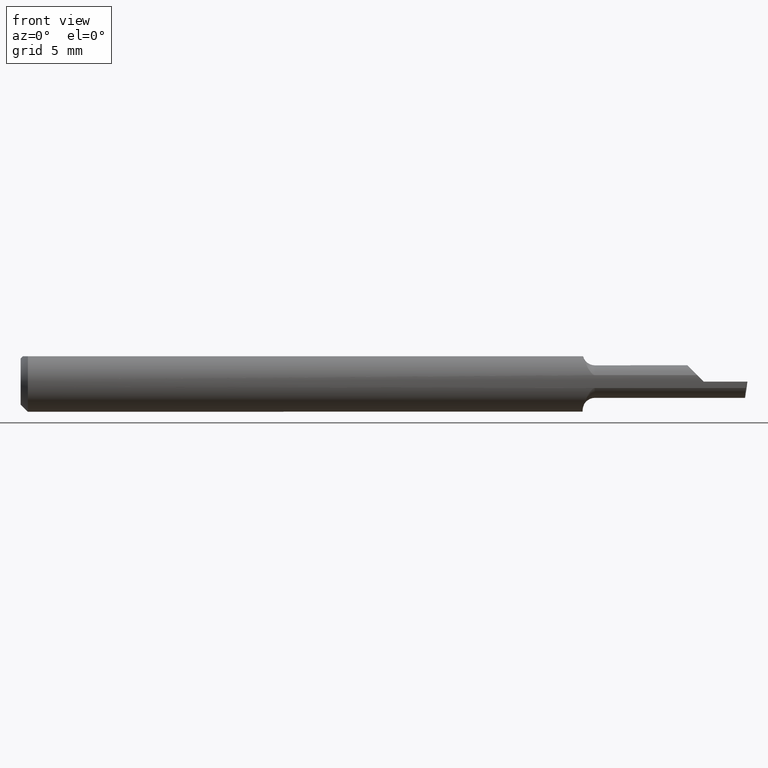
[diagram: clean part render]
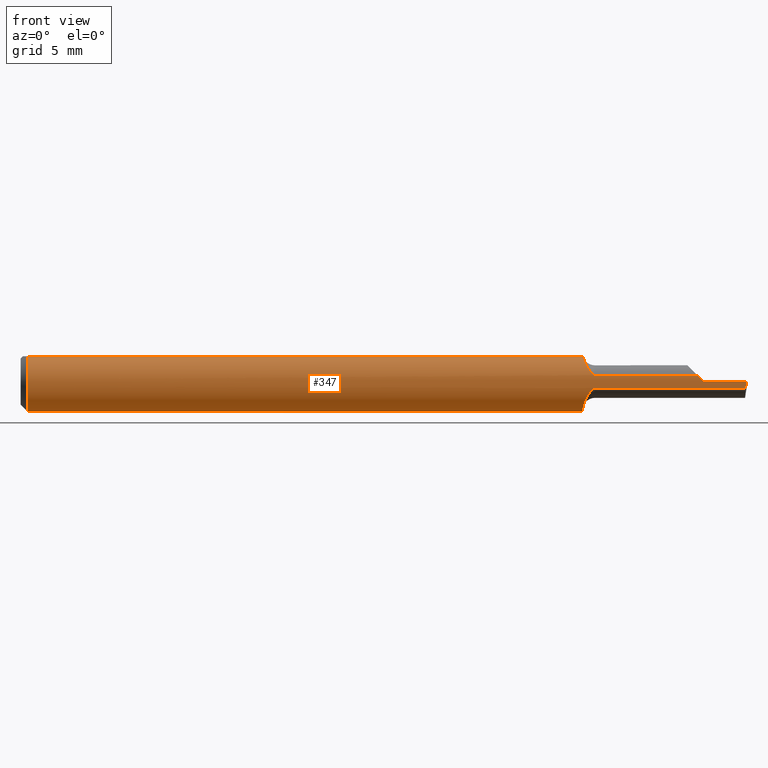
[diagram: same view with one face highlighted and labeled with its STEP entity id]
A machine part, front view. The second image highlights one B-rep face of the part: STEP entity #347.
In plain terms, the highlighted cylindrical surface (edge-blend (fillet) strip) has radius 1.5837 mm, axis along (-1, -0, -0).
Its self-contained STEP definition (entity closure, byte-faithful):
#2 = CIRCLE ( 'NONE', #25, 0.06235000000000000264 ) ;
#8 = CARTESIAN_POINT ( 'NONE',  ( 1.409999999999999920, -0.06235000000000005121, 1.102182119232617911E-17 ) ) ;
#11 = CARTESIAN_POINT ( 'NONE',  ( 1.305000000000000160, -0.06092000000000000887, 0.01327690099383130144 ) ) ;
#12 = CARTESIAN_POINT ( 'NONE',  ( 1.409999999999999920, -0.06235000000000005121, 1.102182119232617911E-17 ) ) ;
#14 = DIRECTION ( 'NONE',  ( 0.0000000000000000000, 0.0000000000000000000, 1.000000000000000000 ) ) ;
#17 = B_SPLINE_CURVE_WITH_KNOTS ( 'NONE', 3,
 ( #121, #205, #505, #247, #346, #292, #565, #252, #386, #341, #26, #469, #156, #383 ),
 .UNSPECIFIED., .F., .F.,
 ( 4, 2, 2, 2, 2, 2, 4 ),
 ( 1.965909345844058709E-07, 0.0001114396223726220005, 0.0002226826538106595904, 0.0004451687166867345532, 0.0008901408424388843705, 0.001335112968191033917, 0.001780085093943183788 ),
 .UNSPECIFIED. ) ;
#19 = CARTESIAN_POINT ( 'NONE',  ( 1.180680476387446554, -0.06051938329563263941, 0.01501179429902413029 ) ) ;
#25 = AXIS2_PLACEMENT_3D ( 'NONE', #93, #449, #232 ) ;
#26 = CARTESIAN_POINT ( 'NONE',  ( 1.162355689262079883, -0.04203237437577732327, -0.04640179157007805200 ) ) ;
#27 = CARTESIAN_POINT ( 'NONE',  ( 1.185000000000000275, -0.06092000000000005050, 0.01327690099383117134 ) ) ;
#30 = CARTESIAN_POINT ( 'NONE',  ( 1.185000000000000275, -0.06092000000000005744, -0.01327690099383113838 ) ) ;
#36 = VERTEX_POINT ( 'NONE', #30 ) ;
#42 = EDGE_LOOP ( 'NONE', ( #355, #566, #97, #375, #185, #43, #99, #438, #389, #58, #288, #547 ) ) ;
#43 = ORIENTED_EDGE ( 'NONE', *, *, #498, .F. ) ;
#48 = DIRECTION ( 'NONE',  ( -1.000000000000000000, 2.845674993400274571E-18, -0.0000000000000000000 ) ) ;
#51 = CARTESIAN_POINT ( 'NONE',  ( 0.01500000000000185213, -0.03386738844380016850, 0.05235000000000000070 ) ) ;
#54 = LINE ( 'NONE', #513, #510 ) ;
#55 = AXIS2_PLACEMENT_3D ( 'NONE', #140, #104, #14 ) ;
#58 = ORIENTED_EDGE ( 'NONE', *, *, #372, .T. ) ;
#64 = CARTESIAN_POINT ( 'NONE',  ( 1.182669914596958582, -0.06082078945086086263, 0.01373977049058549074 ) ) ;
#66 = VERTEX_POINT ( 'NONE', #219 ) ;
#67 = EDGE_CURVE ( 'NONE', #77, #331, #517, .T. ) ;
#75 = CARTESIAN_POINT ( 'NONE',  ( 1.179807319243624031, -0.06032049651225027120, 0.01580211994234508727 ) ) ;
#77 = VERTEX_POINT ( 'NONE', #279 ) ;
#80 = EDGE_CURVE ( 'NONE', #502, #181, #401, .T. ) ;
#84 = VERTEX_POINT ( 'NONE', #373 ) ;
#92 = VERTEX_POINT ( 'NONE', #109 ) ;
#93 = CARTESIAN_POINT ( 'NONE',  ( 1.160000000000000142, 0.0000000000000000000, 0.0000000000000000000 ) ) ;
#97 = ORIENTED_EDGE ( 'NONE', *, *, #545, .T. ) ;
#99 = ORIENTED_EDGE ( 'NONE', *, *, #67, .T. ) ;
#103 = CARTESIAN_POINT ( 'NONE',  ( 1.305000000000000160, -0.06092000000000000887, -0.01327690099383130144 ) ) ;
#104 = DIRECTION ( 'NONE',  ( -1.000000000000000000, -0.0000000000000000000, -0.0000000000000000000 ) ) ;
#109 = CARTESIAN_POINT ( 'NONE',  ( 0.01500000000000000465, 0.0000000000000000000, -0.06235000000000000264 ) ) ;
#113 = EDGE_CURVE ( 'NONE', #536, #36, #267, .T. ) ;
#121 = CARTESIAN_POINT ( 'NONE',  ( 1.185000000000000275, -0.06092000000000005744, -0.01327690099383113838 ) ) ;
#124 = CARTESIAN_POINT ( 'NONE',  ( 0.01500000000000000465, 0.0000000000000000000, 0.0000000000000000000 ) ) ;
#136 = CARTESIAN_POINT ( 'NONE',  ( 0.0000000000000000000, 0.03386738844375223462, 0.05234999999999997988 ) ) ;
#140 = CARTESIAN_POINT ( 'NONE',  ( 0.0000000000000000000, 0.0000000000000000000, 0.0000000000000000000 ) ) ;
#144 = VECTOR ( 'NONE', #48, 39.37007874015748143 ) ;
#145 = CARTESIAN_POINT ( 'NONE',  ( 0.0000000000000000000, -0.03386738844375222768, 0.05234999999999997988 ) ) ;
#156 = CARTESIAN_POINT ( 'NONE',  ( 1.160000000000000142, -0.02789725500421538773, -0.05606440581369925152 ) ) ;
#160 = CARTESIAN_POINT ( 'NONE',  ( 1.172102256738829951, -0.05694092632992445863, 0.02571027090688619149 ) ) ;
#167 = DIRECTION ( 'NONE',  ( -1.000000000000000000, -0.0000000000000000000, -0.0000000000000000000 ) ) ;
#175 = CARTESIAN_POINT ( 'NONE',  ( 1.160770118751884405, -0.03386738844373782253, 0.05235000000000000070 ) ) ;
#176 = EDGE_CURVE ( 'NONE', #315, #181, #393, .T. ) ;
#181 = VERTEX_POINT ( 'NONE', #183 ) ;
#183 = CARTESIAN_POINT ( 'NONE',  ( 1.396723099006168534, -0.06092000000000002274, 0.01327690099383125981 ) ) ;
#185 = ORIENTED_EDGE ( 'NONE', *, *, #80, .F. ) ;
#198 =( BOUNDED_CURVE ( )  B_SPLINE_CURVE ( 3, ( #526, #349, #213, #300 ),
 .UNSPECIFIED., .F., .T. ) 
 B_SPLINE_CURVE_WITH_KNOTS ( ( 4, 4 ),
 ( 1.146162383294268894, 1.360746882514248135 ),
 .UNSPECIFIED. ) 
 CURVE ( )  GEOMETRIC_REPRESENTATION_ITEM ( )  RATIONAL_B_SPLINE_CURVE ( ( 1.000000000000000000, 0.9961664706887894960, 0.9961664706887894960, 1.000000000000000000 ) ) 
 REPRESENTATION_ITEM ( '' )  );
#199 = VECTOR ( 'NONE', #451, 39.37007874015748143 ) ;
#200 = B_SPLINE_CURVE_WITH_KNOTS ( 'NONE', 3,
 ( #175, #222, #259, #336, #374, #511, #160, #425, #250, #75, #19, #64, #471, #208 ),
 .UNSPECIFIED., .F., .F.,
 ( 4, 2, 2, 2, 2, 2, 4 ),
 ( 3.657393739027581265E-07, 0.0003570510026825774613, 0.0007137362659912521072, 0.001070421529299927241, 0.001248764160954264754, 0.001337935476781433293, 0.001427106792608602267 ),
 .UNSPECIFIED. ) ;
#205 = CARTESIAN_POINT ( 'NONE',  ( 1.183515031386487504, -0.06092000000000005050, -0.01327690099383113491 ) ) ;
#208 = CARTESIAN_POINT ( 'NONE',  ( 1.185000000000000275, -0.06092000000000005050, 0.01327690099383117134 ) ) ;
#213 = CARTESIAN_POINT ( 'NONE',  ( 1.497408664532471789, -0.06235000000000000958, -0.004468359128689331633 ) ) ;
#216 = DIRECTION ( 'NONE',  ( 0.0000000000000000000, 0.0000000000000000000, 1.000000000000000000 ) ) ;
#218 = CARTESIAN_POINT ( 'NONE',  ( 0.01500000000000000465, 0.0000000000000000000, 0.0000000000000000000 ) ) ;
#219 = CARTESIAN_POINT ( 'NONE',  ( 1.160000000000000142, -0.02246166666666673736, -0.05816352835373343050 ) ) ;
#222 = CARTESIAN_POINT ( 'NONE',  ( 1.161344833552323541, -0.03782458604559962856, 0.04978992457821582868 ) ) ;
#232 = DIRECTION ( 'NONE',  ( 0.0000000000000000000, 1.000000000000000000, 0.0000000000000000000 ) ) ;
#241 = DIRECTION ( 'NONE',  ( -1.000000000000000000, -0.0000000000000000000, -0.0000000000000000000 ) ) ;
#244 = CIRCLE ( 'NONE', #512, 0.06235000000000000264 ) ;
#247 = CARTESIAN_POINT ( 'NONE',  ( 1.179828686665877369, -0.06034170405075479915, -0.01572293840682440977 ) ) ;
#250 = CARTESIAN_POINT ( 'NONE',  ( 1.177368540304127853, -0.05962881332384150496, 0.01830066387367085268 ) ) ;
#252 = CARTESIAN_POINT ( 'NONE',  ( 1.170064578917327847, -0.05535262368619131568, -0.02912723828542092969 ) ) ;
#259 = CARTESIAN_POINT ( 'NONE',  ( 1.162228576699353644, -0.04137438227418509251, 0.04686461655001721710 ) ) ;
#263 = EDGE_CURVE ( 'NONE', #66, #457, #2, .T. ) ;
#267 = LINE ( 'NONE', #103, #144 ) ;
#271 = CARTESIAN_POINT ( 'NONE',  ( 1.401088976121160679, -0.06187149898566945971, 0.008911023878839281417 ) ) ;
#279 = CARTESIAN_POINT ( 'NONE',  ( 1.160770118751884405, -0.03386738844373782253, 0.05235000000000000070 ) ) ;
#282 = CARTESIAN_POINT ( 'NONE',  ( 1.497957498117606479, -0.06235000000000005121, 2.590631728435619922E-19 ) ) ;
#288 = ORIENTED_EDGE ( 'NONE', *, *, #263, .F. ) ;
#292 = CARTESIAN_POINT ( 'NONE',  ( 1.176050480108695506, -0.05911543623058081870, -0.01994584841871090142 ) ) ;
#296 = DIRECTION ( 'NONE',  ( -1.000000000000000000, -0.0000000000000000000, -0.0000000000000000000 ) ) ;
#300 = CARTESIAN_POINT ( 'NONE',  ( 1.497957498117606479, -0.06235000000000005121, 2.590631728435619922E-19 ) ) ;
#315 = VERTEX_POINT ( 'NONE', #12 ) ;
#328 = CIRCLE ( 'NONE', #330, 0.06235000000000000264 ) ;
#330 = AXIS2_PLACEMENT_3D ( 'NONE', #218, #167, #216 ) ;
#331 = VERTEX_POINT ( 'NONE', #51 ) ;
#336 = CARTESIAN_POINT ( 'NONE',  ( 1.164663954570610116, -0.04772651244230439321, 0.04037711979630432407 ) ) ;
#341 = CARTESIAN_POINT ( 'NONE',  ( 1.163806486637389837, -0.04605636197897008954, -0.04237644601823783996 ) ) ;
#346 = CARTESIAN_POINT ( 'NONE',  ( 1.178839404641495170, -0.06006884725234330064, -0.01674793665629185219 ) ) ;
#347 = ADVANCED_FACE ( 'NONE', ( #446 ), #503, .T. ) ;
#349 = CARTESIAN_POINT ( 'NONE',  ( 1.496875516891821967, -0.06187149898566944584, -0.008911023878839338663 ) ) ;
#351 = CARTESIAN_POINT ( 'NONE',  ( 1.160000000000000142, 0.03386738844375224156, 0.05235000000000000070 ) ) ;
#355 = ORIENTED_EDGE ( 'NONE', *, *, #113, .F. ) ;
#356 = DIRECTION ( 'NONE',  ( -1.000000000000000000, -0.0000000000000000000, -0.0000000000000000000 ) ) ;
#359 = VECTOR ( 'NONE', #549, 39.37007874015748143 ) ;
#372 = EDGE_CURVE ( 'NONE', #84, #457, #567, .T. ) ;
#373 = CARTESIAN_POINT ( 'NONE',  ( 0.01500000000000000465, 0.03386738844375223462, 0.05234999999999997988 ) ) ;
#374 = CARTESIAN_POINT ( 'NONE',  ( 1.166221614559560527, -0.05050373301684460414, 0.03681593035639611766 ) ) ;
#375 = ORIENTED_EDGE ( 'NONE', *, *, #176, .T. ) ;
#383 = CARTESIAN_POINT ( 'NONE',  ( 1.160000000000000142, -0.02246166666666673736, -0.05816352835373343050 ) ) ;
#386 = CARTESIAN_POINT ( 'NONE',  ( 1.167651921643428681, -0.05268295501176717410, -0.03378546887498621448 ) ) ;
#389 = ORIENTED_EDGE ( 'NONE', *, *, #391, .F. ) ;
#391 = EDGE_CURVE ( 'NONE', #84, #92, #244, .T. ) ;
#393 =( BOUNDED_CURVE ( )  B_SPLINE_CURVE ( 3, ( #8, #400, #271, #489 ),
 .UNSPECIFIED., .F., .T. ) 
 B_SPLINE_CURVE_WITH_KNOTS ( ( 4, 4 ),
 ( 4.712388980384689674, 4.926973479604669137 ),
 .UNSPECIFIED. ) 
 CURVE ( )  GEOMETRIC_REPRESENTATION_ITEM ( )  RATIONAL_B_SPLINE_CURVE ( ( 1.000000000000000000, 0.9961664706887894960, 0.9961664706887894960, 1.000000000000000000 ) ) 
 REPRESENTATION_ITEM ( '' )  );
#400 = CARTESIAN_POINT ( 'NONE',  ( 1.405531640871310994, -0.06235000000000000958, 0.004468359128689269183 ) ) ;
#401 = LINE ( 'NONE', #11, #359 ) ;
#409 = VERTEX_POINT ( 'NONE', #282 ) ;
#421 = EDGE_CURVE ( 'NONE', #536, #409, #198, .T. ) ;
#425 = CARTESIAN_POINT ( 'NONE',  ( 1.175983073081282360, -0.05904190537839693748, 0.02013745427411976763 ) ) ;
#438 = ORIENTED_EDGE ( 'NONE', *, *, #439, .F. ) ;
#439 = EDGE_CURVE ( 'NONE', #92, #331, #328, .T. ) ;
#446 = FACE_OUTER_BOUND ( 'NONE', #42, .T. ) ;
#449 = DIRECTION ( 'NONE',  ( 1.000000000000000000, -2.845674993400274571E-18, 0.0000000000000000000 ) ) ;
#451 = DIRECTION ( 'NONE',  ( 1.000000000000000000, 0.0000000000000000000, 0.0000000000000000000 ) ) ;
#457 = VERTEX_POINT ( 'NONE', #351 ) ;
#469 = CARTESIAN_POINT ( 'NONE',  ( 1.160459195061412707, -0.03294655339399236299, -0.05323881456264106110 ) ) ;
#470 = VECTOR ( 'NONE', #241, 39.37007874015748143 ) ;
#471 = CARTESIAN_POINT ( 'NONE',  ( 1.183800894846882779, -0.06092000000060115994, 0.01327690099107460379 ) ) ;
#489 = CARTESIAN_POINT ( 'NONE',  ( 1.396723099006168534, -0.06092000000000002274, 0.01327690099383125981 ) ) ;
#498 = EDGE_CURVE ( 'NONE', #77, #502, #200, .T. ) ;
#502 = VERTEX_POINT ( 'NONE', #27 ) ;
#503 = CYLINDRICAL_SURFACE ( 'NONE', #55, 0.06235000000000000264 ) ;
#505 = CARTESIAN_POINT ( 'NONE',  ( 1.182160137918816467, -0.06077026469959424110, -0.01397522694752837552 ) ) ;
#510 = VECTOR ( 'NONE', #296, 39.37007874015748143 ) ;
#511 = CARTESIAN_POINT ( 'NONE',  ( 1.169932821425532232, -0.05508260153816094129, 0.02952874505345459005 ) ) ;
#512 = AXIS2_PLACEMENT_3D ( 'NONE', #124, #356, #570 ) ;
#513 = CARTESIAN_POINT ( 'NONE',  ( 2.249639673992780117E-32, -0.06234999999999999570, 1.836970198721026976E-16 ) ) ;
#517 = LINE ( 'NONE', #145, #470 ) ;
#526 = CARTESIAN_POINT ( 'NONE',  ( 1.496364186706980792, -0.06092000000000000887, -0.01327690099383130144 ) ) ;
#536 = VERTEX_POINT ( 'NONE', #557 ) ;
#545 = EDGE_CURVE ( 'NONE', #409, #315, #54, .T. ) ;
#547 = ORIENTED_EDGE ( 'NONE', *, *, #561, .F. ) ;
#549 = DIRECTION ( 'NONE',  ( 1.000000000000000000, -2.845674993400274571E-18, 0.0000000000000000000 ) ) ;
#557 = CARTESIAN_POINT ( 'NONE',  ( 1.496364186706980792, -0.06092000000000000887, -0.01327690099383130144 ) ) ;
#561 = EDGE_CURVE ( 'NONE', #36, #66, #17, .T. ) ;
#565 = CARTESIAN_POINT ( 'NONE',  ( 1.174448669179930516, -0.05829317251375055325, -0.02226264029831849858 ) ) ;
#566 = ORIENTED_EDGE ( 'NONE', *, *, #421, .T. ) ;
#567 = LINE ( 'NONE', #136, #199 ) ;
#570 = DIRECTION ( 'NONE',  ( 0.0000000000000000000, 0.0000000000000000000, 1.000000000000000000 ) ) ;